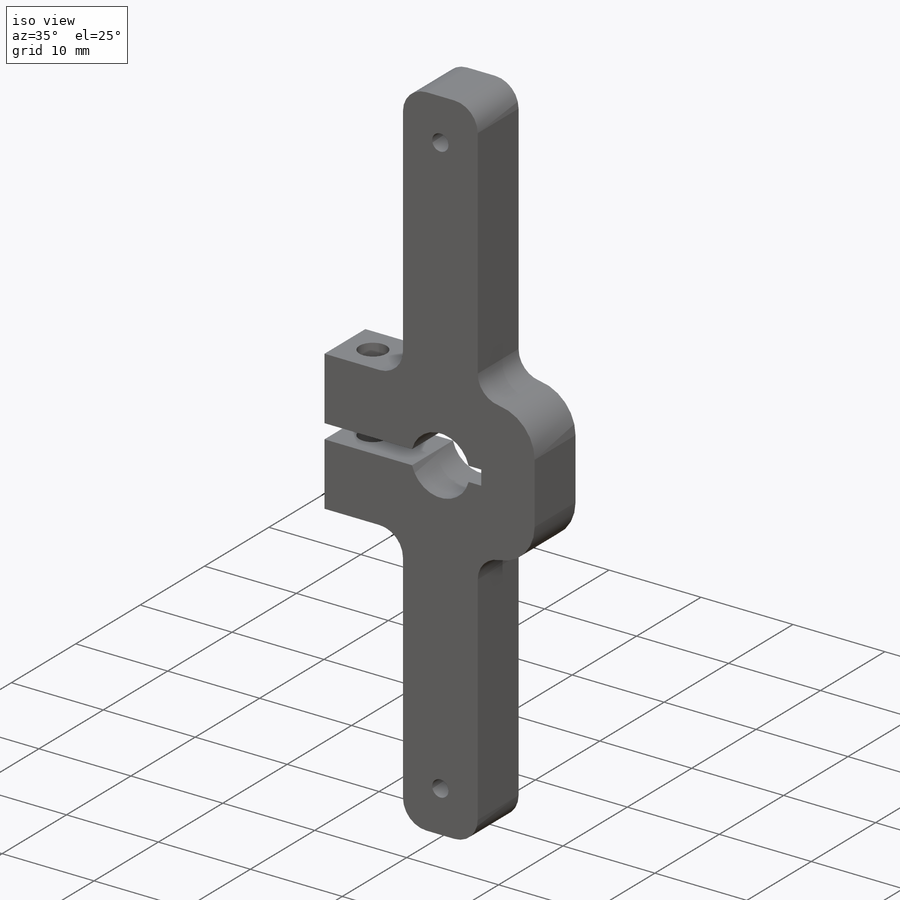
[diagram: iso view]
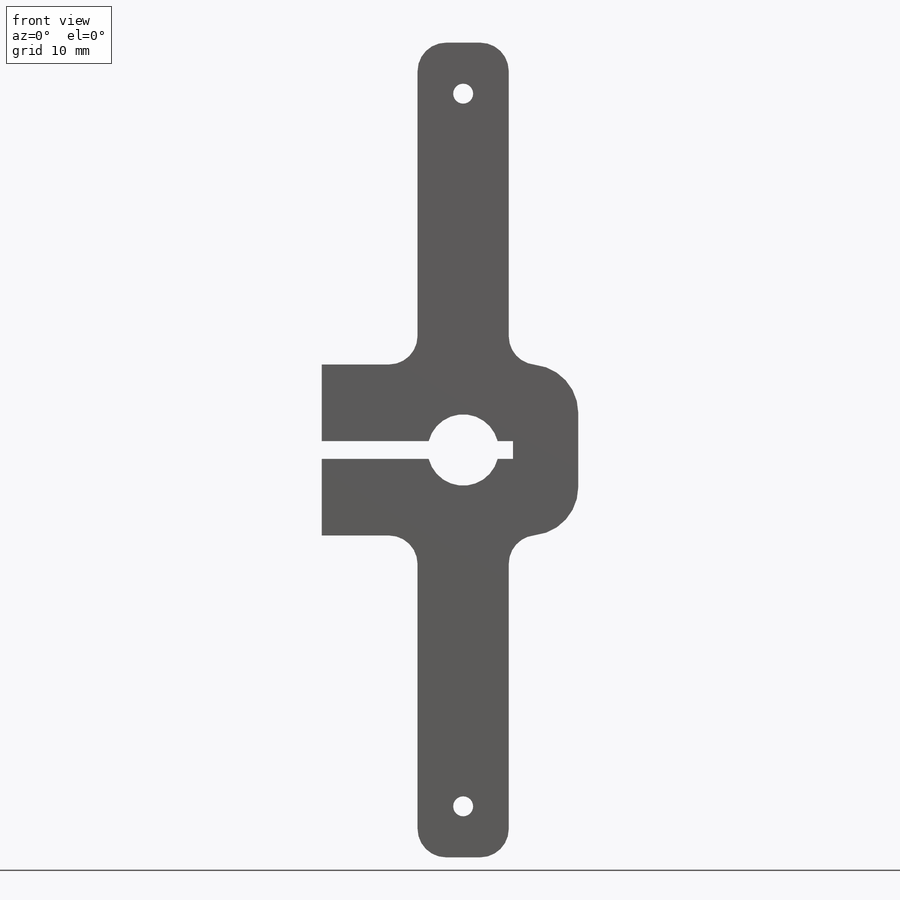
[diagram: front view]
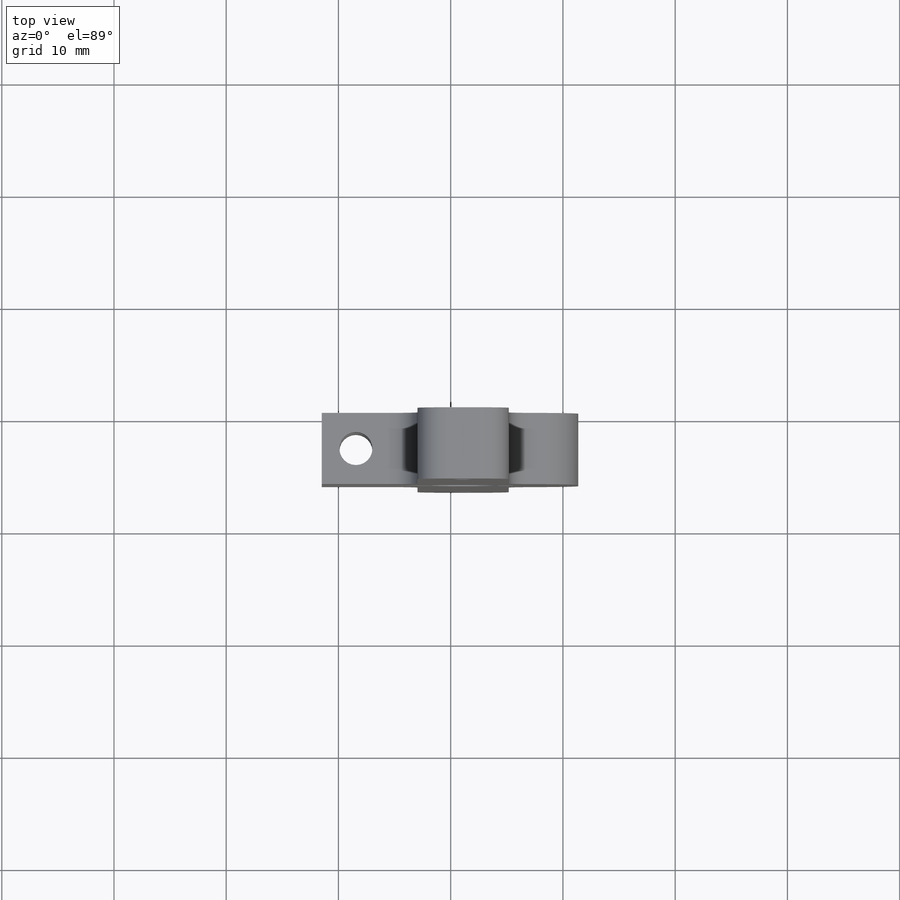
[diagram: top view]
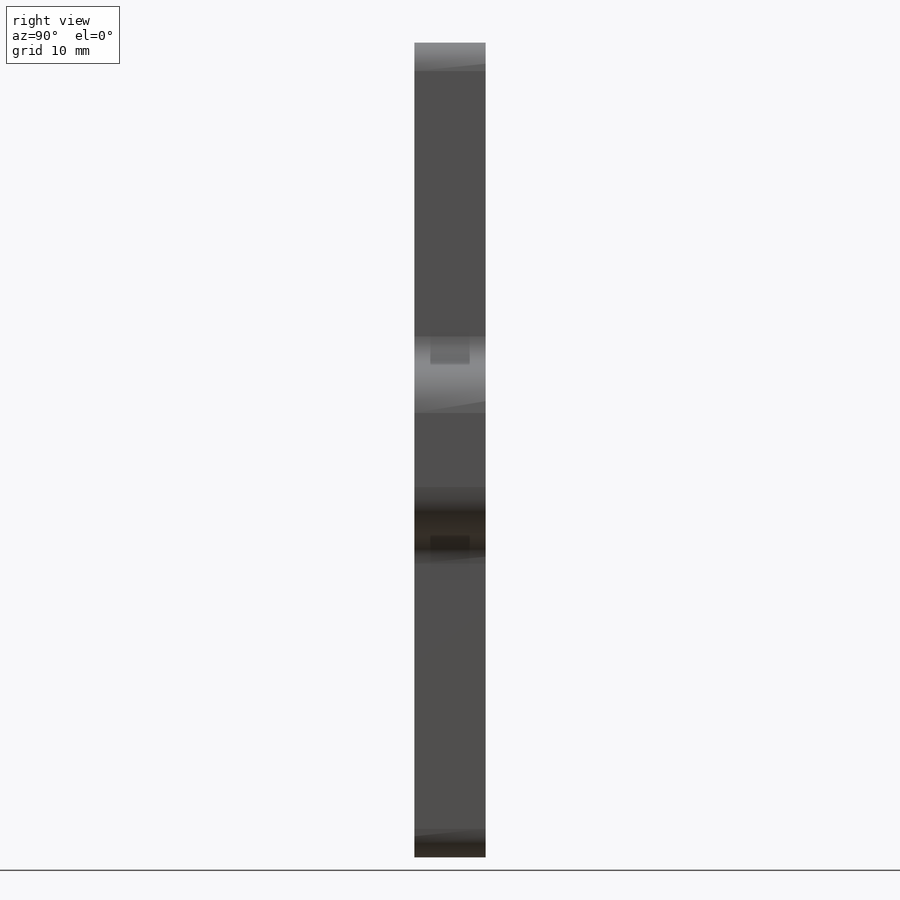
[diagram: right view]
SOLIDWORKS PART (.sldprt)
format: sldprt  version: not decoded by parser v0  size: 387,072 bytes
history: native  units: mm
features: sketch x12, extrude x2, cut_extrude x2, fillet x2, hole x2, mirror x2, material x1, plane x1 (+12 scaffold rows collapsed)
feature tree (36):
  scaffold x12  (default folders/planes/origin — collapsed)
  material  "6061-T6 (SS)"
  sketch  "Sketch1"  dims[D1=15.24mm]
  extrude  "Extrude1"  Depth=6.35mm
  sketch  "Sketch2"  dims[D1=11.43mm]
  cut_extrude  "Extrude2"  [1 undecoded]
  sketch  "Sketch4"  dims[D1=6.985mm]
  cut_extrude  "Extrude4"  [1 undecoded]
  sketch  "Sketch28"
  sketch  "Sketch33"  dims[D1=3.048mm]
  fillet  "Fillet2"  Radius=4.318mm
  hole  "#32 (0.116) Diameter Hole1"  Diameter=2.9464mm Depth=15.24mm
  sketch  "3DSketch5"
  sketch  "Sketch19"  dims[hole-wizard template sketch: 60 standard entries collapsed; hole parameters kept: c18.Thru Hole Depth=15.24mm]
  sketch  "Sketch21"  dims[D1=6.35mm]
  extrude  "Extrude8"  Depth=28.6766mm
  sketch  "Sketch26"  dims[D1=31.75mm]
  hole  "#50 (0.07) Diameter Hole1"  Diameter=1.778mm Depth=6.35mm
  sketch  "3DSketch7"
  sketch  "Sketch27"  dims[hole-wizard template sketch: 50 standard entries collapsed; hole parameters above]
  mirror  "Mirror2"
  fillet  "Fillet1"  Radius=2.54mm faceID=1
  mirror  "FaceIDTag-19"  faceID=19
  plane  "Plane1"  Offset=3.81mm
  sketch  "Sketch34"  dims[D1=38.1mm]
decode coverage: 16 of 22 modeling features carry decoded parameters
note: ~ marks probable driven/reference dimensions
note: 2 parameter values undecoded
note: suppression state not decoded; provenance and decode notes live in map.json
